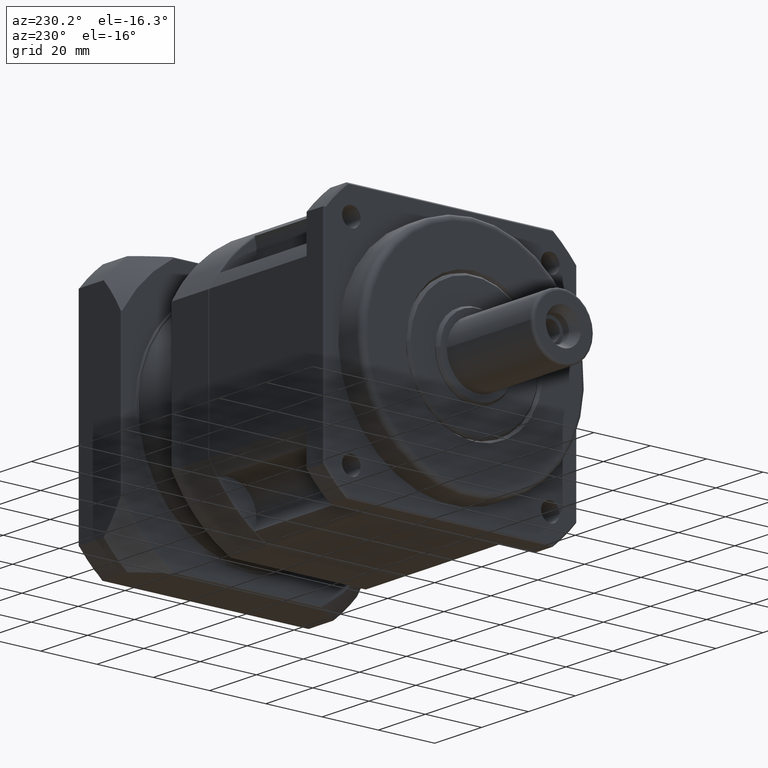
[diagram: clean part render]
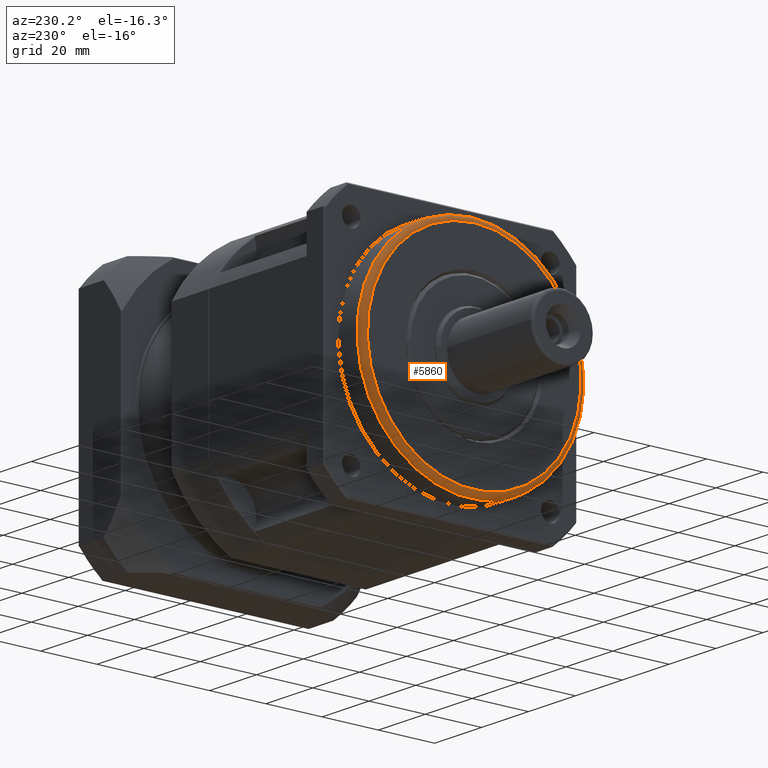
[diagram: same view with one face highlighted and labeled with its STEP entity id]
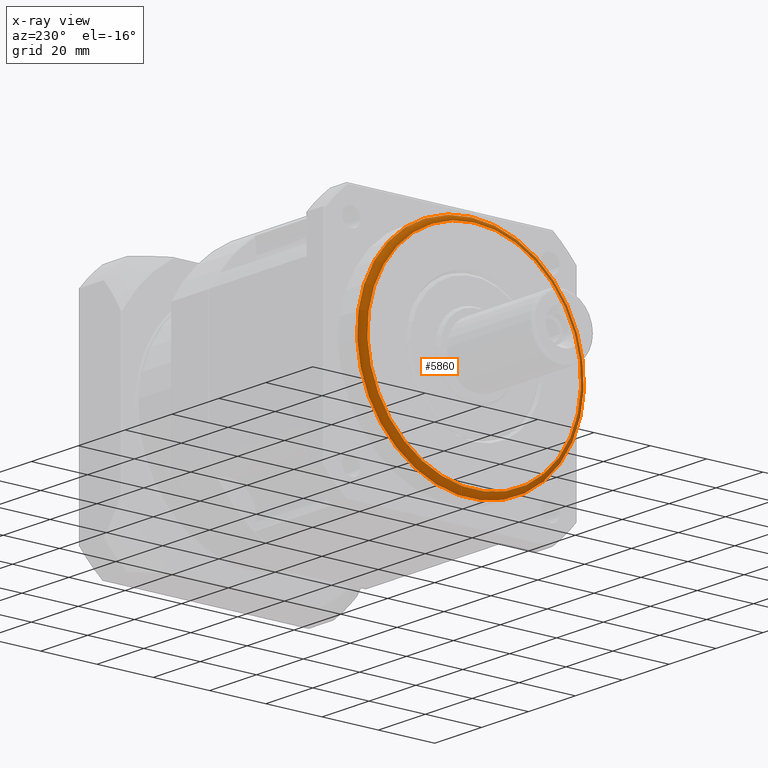
[diagram: x-ray of the same camera — body ghosted, the highlighted face saturated]
A machine part, auxiliary view. The second image highlights one B-rep face of the part: STEP entity #5860.
The next image is the same camera in x-ray: the body ghosted, the highlighted face saturated — about 4% of this face is hidden behind the body in this view.
In plain terms, the highlighted toroidal blend (fillet) surface has major radius 38 mm and minor (blend) radius 2 mm.
Its self-contained STEP definition (entity closure, byte-faithful):
#786=TOROIDAL_SURFACE('',#6511,38.,2.);
#1087=FACE_BOUND('',#1888,.T.);
#1376=FACE_OUTER_BOUND('',#1887,.T.);
#1887=EDGE_LOOP('',(#4589));
#1888=EDGE_LOOP('',(#4590));
#2314=CIRCLE('',#6441,38.);
#2348=CIRCLE('',#6512,40.);
#2731=VERTEX_POINT('',#9939);
#2794=VERTEX_POINT('',#10170);
#3362=EDGE_CURVE('',#2731,#2731,#2314,.T.);
#3453=EDGE_CURVE('',#2794,#2794,#2348,.T.);
#4589=ORIENTED_EDGE('',*,*,#3453,.T.);
#4590=ORIENTED_EDGE('',*,*,#3362,.T.);
#5860=ADVANCED_FACE('',(#1376,#1087),#786,.T.);
#6441=AXIS2_PLACEMENT_3D('',#9940,#7689,#7690);
#6511=AXIS2_PLACEMENT_3D('',#10169,#7862,#7863);
#6512=AXIS2_PLACEMENT_3D('',#10171,#7864,#7865);
#7689=DIRECTION('center_axis',(1.,6.10622663543793E-16,-4.82820056512866E-15));
#7690=DIRECTION('ref_axis',(-4.82820056512866E-15,1.19348975147199E-15,
-1.));
#7862=DIRECTION('center_axis',(-1.,-6.10622663543793E-16,4.82820056512866E-15));
#7863=DIRECTION('ref_axis',(4.9737991503207E-15,-1.06581410364015E-15,1.));
#7864=DIRECTION('center_axis',(-1.,-6.10622663543793E-16,4.82820056512866E-15));
#7865=DIRECTION('ref_axis',(-4.82820056512866E-15,1.19348975147199E-15,
-1.));
#9939=CARTESIAN_POINT('',(-70.029710344318,-32.3933275789248,48.8503877548313));
#9940=CARTESIAN_POINT('Origin',(-70.0297103443182,-32.3933275789247,10.8503877548313));
#10169=CARTESIAN_POINT('Origin',(-68.0297103443182,-32.3933275789247,10.8503877548313));
#10170=CARTESIAN_POINT('',(-68.029710344318,-32.3933275789248,50.8503877548313));
#10171=CARTESIAN_POINT('Origin',(-68.0297103443182,-32.3933275789247,10.8503877548313));